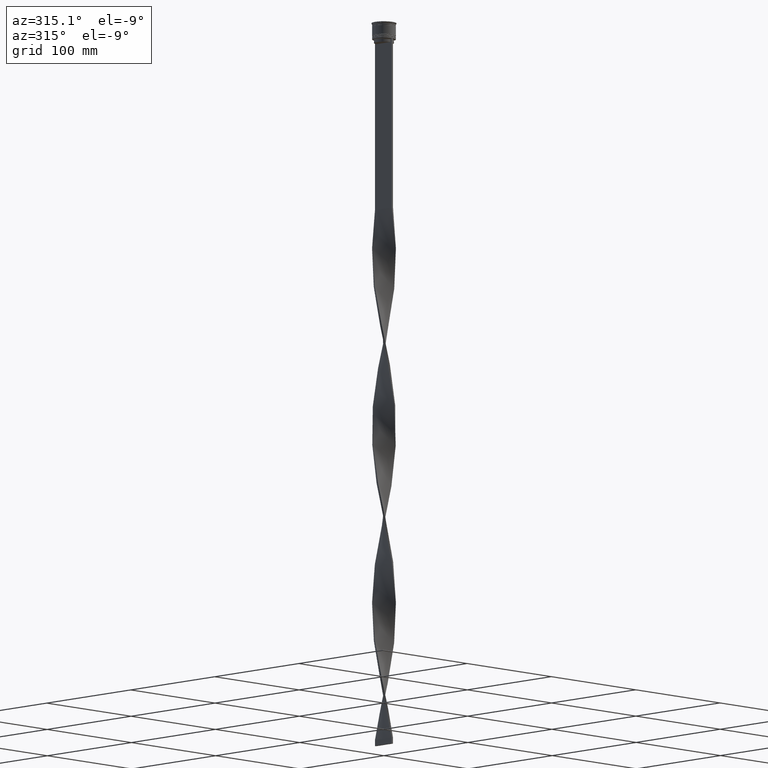
[diagram: clean part render]
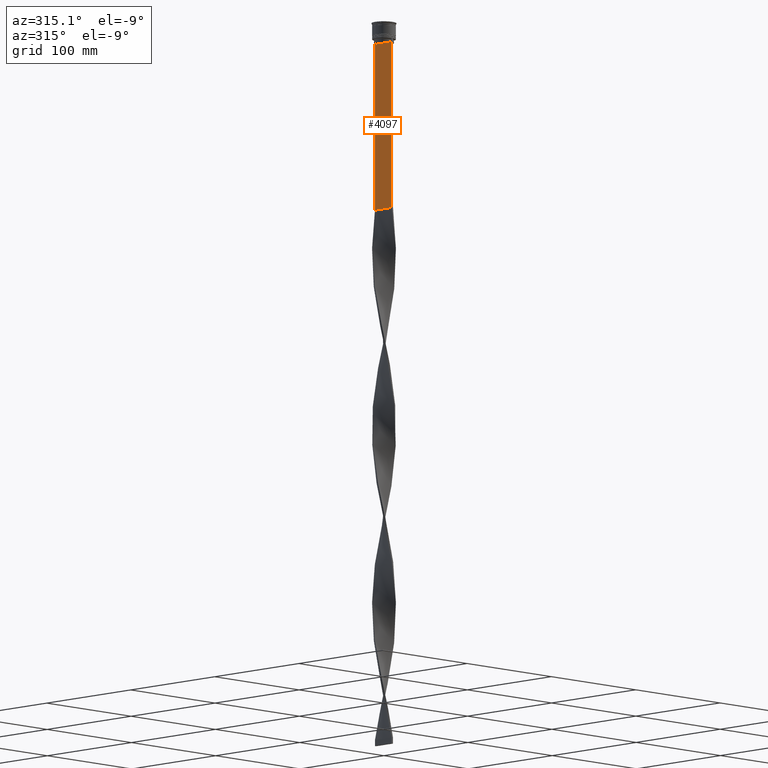
[diagram: same view with one face highlighted and labeled with its STEP entity id]
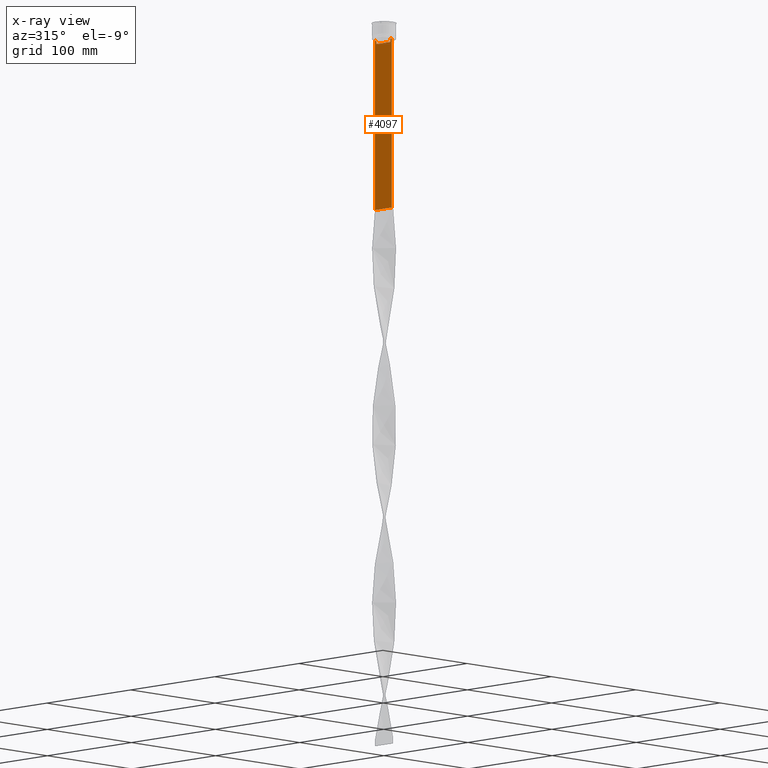
[diagram: x-ray of the same camera — body ghosted, the highlighted face saturated]
A machine part, auxiliary view. The second image highlights one B-rep face of the part: STEP entity #4097.
The next image is the same camera in x-ray: the body ghosted, the highlighted face saturated — about 0% of this face is hidden behind the body in this view.
In plain terms, the highlighted planar face has unit normal (-1, 0, 0).
Its self-contained STEP definition (entity closure, byte-faithful):
#25 = DIRECTION ( 'NONE',  ( 0.000000000000000000, -1.000000000000000000, 0.000000000000000000 ) ) ;
#27 = LINE ( 'NONE', #1861, #536 ) ;
#38 = ORIENTED_EDGE ( 'NONE', *, *, #1638, .F. ) ;
#79 = PLANE ( 'NONE',  #466 ) ;
#81 = EDGE_CURVE ( 'NONE', #1962, #1752, #382, .T. ) ;
#90 = DIRECTION ( 'NONE',  ( 0.000000000000000000, -1.000000000000000000, 0.000000000000000000 ) ) ;
#108 = FACE_OUTER_BOUND ( 'NONE', #3451, .T. ) ;
#272 = ORIENTED_EDGE ( 'NONE', *, *, #1864, .F. ) ;
#294 = DIRECTION ( 'NONE',  ( 0.000000000000000000, -1.000000000000000000, 0.000000000000000000 ) ) ;
#315 = VECTOR ( 'NONE', #3803, 1000.000000000000000 ) ;
#344 = CARTESIAN_POINT ( 'NONE',  ( -0.7499999999999997780, -10.00000000000000533, -14.00000000000000178 ) ) ;
#352 = ORIENTED_EDGE ( 'NONE', *, *, #4117, .F. ) ;
#382 = LINE ( 'NONE', #4575, #1409 ) ;
#450 = EDGE_CURVE ( 'NONE', #1788, #1752, #3880, .T. ) ;
#466 = AXIS2_PLACEMENT_3D ( 'NONE', #3667, #3280, #3320 ) ;
#531 = VECTOR ( 'NONE', #90, 1000.000000000000000 ) ;
#536 = VECTOR ( 'NONE', #3563, 1000.000000000000000 ) ;
#583 = ORIENTED_EDGE ( 'NONE', *, *, #2800, .F. ) ;
#735 = VECTOR ( 'NONE', #294, 1000.000000000000000 ) ;
#742 = B_SPLINE_CURVE_WITH_KNOTS ( 'NONE', 3,
 ( #1912, #1890, #3593, #1204 ),
 .UNSPECIFIED., .F., .F.,
 ( 4, 4 ),
 ( 0.01512225952876174867, 0.01583070519299695222 ),
 .UNSPECIFIED. ) ;
#775 = ORIENTED_EDGE ( 'NONE', *, *, #1238, .F. ) ;
#793 = LINE ( 'NONE', #3623, #3049 ) ;
#819 = VECTOR ( 'NONE', #3616, 1000.000000000000000 ) ;
#831 = VECTOR ( 'NONE', #4049, 1000.000000000000000 ) ;
#902 = B_SPLINE_CURVE_WITH_KNOTS ( 'NONE', 3,
 ( #4280, #3937, #1141, #2585 ),
 .UNSPECIFIED., .F., .F.,
 ( 4, 4 ),
 ( 0.03866293624047253963, 0.03937282246709321309 ),
 .UNSPECIFIED. ) ;
#981 = VERTEX_POINT ( 'NONE', #3562 ) ;
#1058 = EDGE_CURVE ( 'NONE', #2576, #4456, #4320, .T. ) ;
#1141 = CARTESIAN_POINT ( 'NONE',  ( -0.7499999999999997780, -8.701063080777123204, -14.16668447713511547 ) ) ;
#1194 = VECTOR ( 'NONE', #4325, 1000.000000000000000 ) ;
#1204 = CARTESIAN_POINT ( 'NONE',  ( -0.7499999999999997780, 8.366450860430608927, -14.50000000000000000 ) ) ;
#1238 = EDGE_CURVE ( 'NONE', #3509, #2696, #2868, .T. ) ;
#1409 = VECTOR ( 'NONE', #2523, 1000.000000000000000 ) ;
#1424 = ORIENTED_EDGE ( 'NONE', *, *, #1483, .F. ) ;
#1464 = CARTESIAN_POINT ( 'NONE',  ( -0.7499999999999997780, -8.366450860430608927, -14.50000000000000000 ) ) ;
#1483 = EDGE_CURVE ( 'NONE', #4456, #1788, #4100, .T. ) ;
#1493 = ORIENTED_EDGE ( 'NONE', *, *, #4288, .F. ) ;
#1548 = CARTESIAN_POINT ( 'NONE',  ( -0.7499999999999998890, -10.00000000000000533, -157.9999999999999716 ) ) ;
#1638 = EDGE_CURVE ( 'NONE', #1962, #3509, #2804, .T. ) ;
#1672 = CARTESIAN_POINT ( 'NONE',  ( -0.7499999999999997780, -8.868342573446296839, -14.00000000000000178 ) ) ;
#1752 = VERTEX_POINT ( 'NONE', #1911 ) ;
#1788 = VERTEX_POINT ( 'NONE', #1548 ) ;
#1861 = CARTESIAN_POINT ( 'NONE',  ( -0.7499999999999997780, 8.400000000000003908, -17.00000000000000000 ) ) ;
#1864 = EDGE_CURVE ( 'NONE', #2956, #2576, #2556, .T. ) ;
#1878 = CARTESIAN_POINT ( 'NONE',  ( -0.7499999999999997780, 9.871550030263740894, -14.00000000000000178 ) ) ;
#1890 = CARTESIAN_POINT ( 'NONE',  ( -0.7499999999999997780, 8.701063075415252257, -14.16668448247791723 ) ) ;
#1911 = CARTESIAN_POINT ( 'NONE',  ( -0.7499999999999997780, 9.999999999999998224, -157.9999999999999716 ) ) ;
#1912 = CARTESIAN_POINT ( 'NONE',  ( -0.7499999999999997780, 8.868342573446296839, -14.00000000000000178 ) ) ;
#1917 = CARTESIAN_POINT ( 'NONE',  ( -0.7499999999999997780, 8.366450860430608927, -14.50000000000000000 ) ) ;
#1962 = VERTEX_POINT ( 'NONE', #4113 ) ;
#2140 = CARTESIAN_POINT ( 'NONE',  ( -0.7499999999999997780, -10.00000000000000533, -157.9999999999999716 ) ) ;
#2192 = ORIENTED_EDGE ( 'NONE', *, *, #450, .F. ) ;
#2233 = CARTESIAN_POINT ( 'NONE',  ( -0.7499999999999997780, 8.868342573446296839, -14.00000000000000178 ) ) ;
#2496 = ORIENTED_EDGE ( 'NONE', *, *, #4175, .F. ) ;
#2523 = DIRECTION ( 'NONE',  ( 0.000000000000000000, 0.000000000000000000, -1.000000000000000000 ) ) ;
#2556 = LINE ( 'NONE', #3637, #819 ) ;
#2576 = VERTEX_POINT ( 'NONE', #2805 ) ;
#2585 = CARTESIAN_POINT ( 'NONE',  ( -0.7499999999999997780, -8.868342573446296839, -14.00000000000000178 ) ) ;
#2652 = CARTESIAN_POINT ( 'NONE',  ( -0.7499999999999997780, -10.00000000000000533, 6.056171120131581098 ) ) ;
#2696 = VERTEX_POINT ( 'NONE', #2233 ) ;
#2800 = EDGE_CURVE ( 'NONE', #2696, #4147, #742, .T. ) ;
#2804 = LINE ( 'NONE', #344, #735 ) ;
#2805 = CARTESIAN_POINT ( 'NONE',  ( -0.7499999999999997780, -9.871550030263740894, -14.00000000000000178 ) ) ;
#2868 = LINE ( 'NONE', #4268, #531 ) ;
#2956 = VERTEX_POINT ( 'NONE', #1672 ) ;
#2995 = VERTEX_POINT ( 'NONE', #3056 ) ;
#3049 = VECTOR ( 'NONE', #4032, 1000.000000000000000 ) ;
#3056 = CARTESIAN_POINT ( 'NONE',  ( -0.7499999999999997780, -8.366450860430608927, -17.00000000000000000 ) ) ;
#3088 = LINE ( 'NONE', #4172, #315 ) ;
#3104 = ORIENTED_EDGE ( 'NONE', *, *, #1058, .F. ) ;
#3210 = ORIENTED_EDGE ( 'NONE', *, *, #4542, .F. ) ;
#3280 = DIRECTION ( 'NONE',  ( -1.000000000000000000, 0.000000000000000000, 0.000000000000000000 ) ) ;
#3320 = DIRECTION ( 'NONE',  ( 0.000000000000000000, 0.000000000000000000, 1.000000000000000000 ) ) ;
#3419 = VECTOR ( 'NONE', #25, 1000.000000000000000 ) ;
#3451 = EDGE_LOOP ( 'NONE', ( #583, #775, #38, #3963, #2192, #1424, #3104, #272, #2496, #3210, #1493, #352 ) ) ;
#3509 = VERTEX_POINT ( 'NONE', #1878 ) ;
#3562 = CARTESIAN_POINT ( 'NONE',  ( -0.7499999999999997780, 8.366450860430608927, -17.00000000000000000 ) ) ;
#3563 = DIRECTION ( 'NONE',  ( 0.000000000000000000, -1.000000000000000000, 0.000000000000000000 ) ) ;
#3593 = CARTESIAN_POINT ( 'NONE',  ( -0.7499999999999997780, 8.533766897779926808, -14.33335221373273782 ) ) ;
#3616 = DIRECTION ( 'NONE',  ( 0.000000000000000000, -1.000000000000000000, 0.000000000000000000 ) ) ;
#3623 = CARTESIAN_POINT ( 'NONE',  ( -0.7499999999999997780, 8.366450860430608927, 0.000000000000000000 ) ) ;
#3637 = CARTESIAN_POINT ( 'NONE',  ( -0.7499999999999997780, -10.00000000000000533, -14.00000000000000178 ) ) ;
#3667 = CARTESIAN_POINT ( 'NONE',  ( -0.7499999999999997780, -10.00000000000000533, 6.056171120131581098 ) ) ;
#3803 = DIRECTION ( 'NONE',  ( -0.000000000000000000, -0.000000000000000000, 1.000000000000000000 ) ) ;
#3880 = LINE ( 'NONE', #2140, #1194 ) ;
#3923 = CARTESIAN_POINT ( 'NONE',  ( -0.7499999999999997780, -10.00000000000000533, -14.00000000000000178 ) ) ;
#3937 = CARTESIAN_POINT ( 'NONE',  ( -0.7499999999999997780, -8.533766903463440912, -14.33335220807192201 ) ) ;
#3963 = ORIENTED_EDGE ( 'NONE', *, *, #81, .T. ) ;
#4032 = DIRECTION ( 'NONE',  ( 0.000000000000000000, 0.000000000000000000, -1.000000000000000000 ) ) ;
#4049 = DIRECTION ( 'NONE',  ( 0.000000000000000000, 0.000000000000000000, -1.000000000000000000 ) ) ;
#4097 = ADVANCED_FACE ( 'NONE', ( #108 ), #79, .T. ) ;
#4100 = LINE ( 'NONE', #2652, #831 ) ;
#4113 = CARTESIAN_POINT ( 'NONE',  ( -0.7499999999999997780, 9.999999999999998224, -14.00000000000000178 ) ) ;
#4117 = EDGE_CURVE ( 'NONE', #4147, #981, #793, .T. ) ;
#4147 = VERTEX_POINT ( 'NONE', #1917 ) ;
#4155 = VERTEX_POINT ( 'NONE', #1464 ) ;
#4172 = CARTESIAN_POINT ( 'NONE',  ( -0.7499999999999997780, -8.366450860430608927, 0.000000000000000000 ) ) ;
#4175 = EDGE_CURVE ( 'NONE', #4155, #2956, #902, .T. ) ;
#4268 = CARTESIAN_POINT ( 'NONE',  ( -0.7499999999999997780, -10.00000000000000533, -14.00000000000000178 ) ) ;
#4280 = CARTESIAN_POINT ( 'NONE',  ( -0.7499999999999997780, -8.366450860430608927, -14.50000000000000000 ) ) ;
#4288 = EDGE_CURVE ( 'NONE', #981, #2995, #27, .T. ) ;
#4298 = CARTESIAN_POINT ( 'NONE',  ( -0.7499999999999997780, -10.00000000000000533, -14.00000000000000178 ) ) ;
#4320 = LINE ( 'NONE', #3923, #3419 ) ;
#4325 = DIRECTION ( 'NONE',  ( 0.000000000000000000, 1.000000000000000000, 0.000000000000000000 ) ) ;
#4456 = VERTEX_POINT ( 'NONE', #4298 ) ;
#4542 = EDGE_CURVE ( 'NONE', #2995, #4155, #3088, .T. ) ;
#4575 = CARTESIAN_POINT ( 'NONE',  ( -0.7499999999999997780, 9.999999999999998224, 6.056171120131581098 ) ) ;